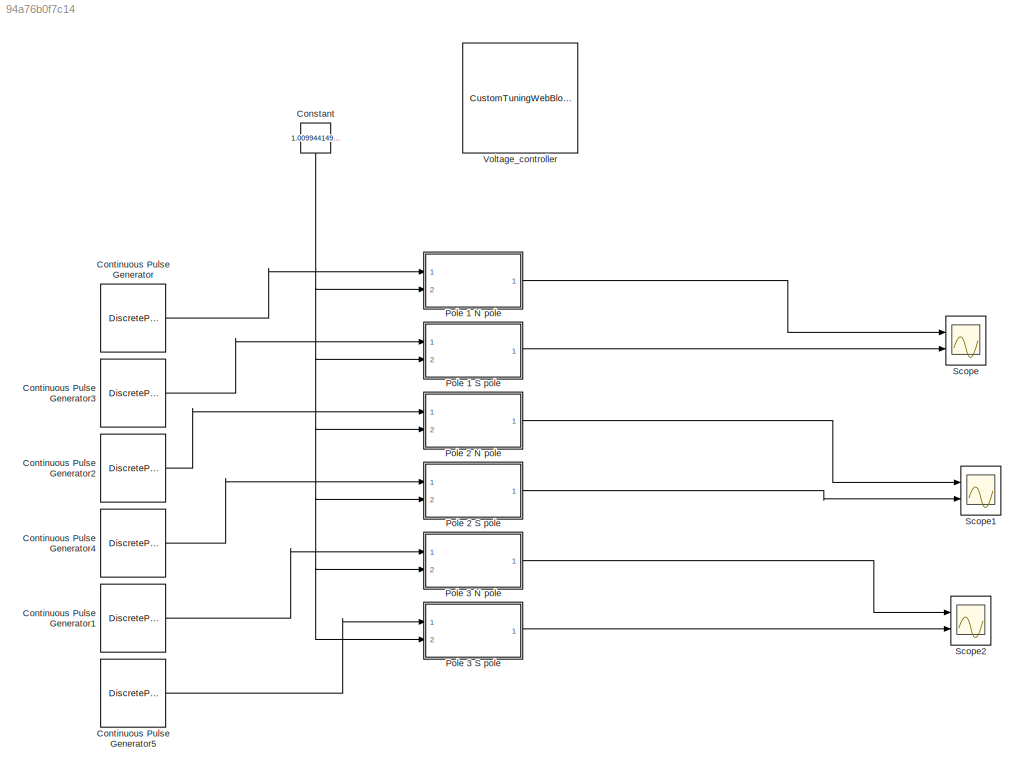
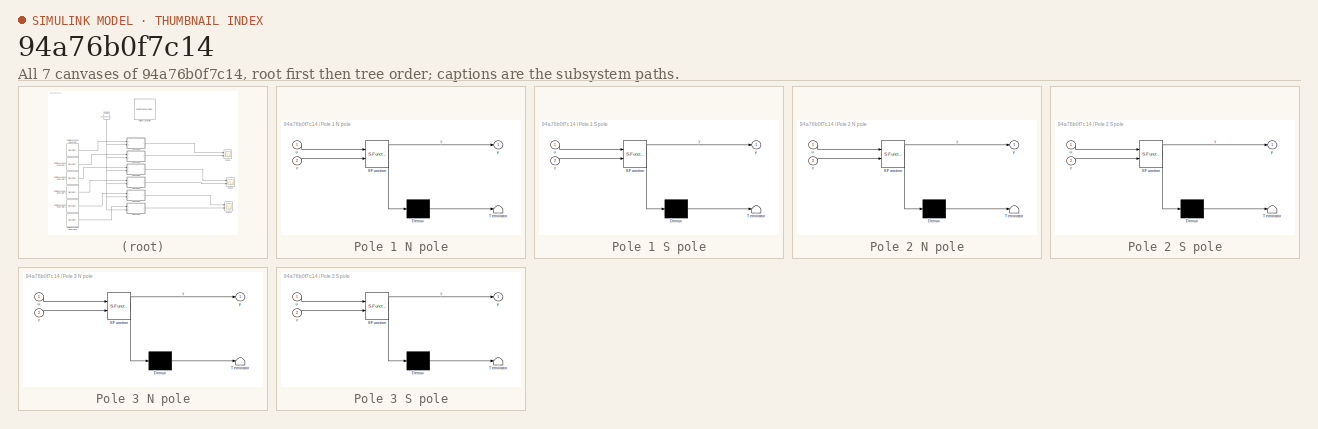
[diagram: thumbnail index - all 7 canvases of the model, root first then tree order]
MODEL slx_94a76b0f7c14
KIND model
CONFIG AbsTol = auto
CONFIG EnableMultiTasking = off
CONFIG FixedStep = auto
CONFIG MaxStep = auto
CONFIG MinStep = auto
CONFIG RelTol = 1e-3
CONFIG SampleTimeConstraint = Unconstrained
CONFIG SolverName = VariableStepAuto
CONFIG StartTime = 0.0
CONFIG StopTime = 10.0
BLOCK [Constant] Constant
  NameLocation = left
  Value = 1.009944149718375
BLOCK [DiscretePulseGenerator] Continuous Pulse Generator
  Period = 3
  Ports = [0, 1]
  PulseType = Time based
  PulseWidth = 100/3
BLOCK [DiscretePulseGenerator] Continuous Pulse Generator1
  Period = 3
  PhaseDelay = 2
  Ports = [0, 1]
  PulseType = Time based
  PulseWidth = 100/3
BLOCK [DiscretePulseGenerator] Continuous Pulse Generator2
  Period = 3
  PhaseDelay = 1
  Ports = [0, 1]
  PulseType = Time based
  PulseWidth = 100/3
BLOCK [DiscretePulseGenerator] Continuous Pulse Generator3
  Amplitude = -1
  Period = 3
  Ports = [0, 1]
  PulseType = Time based
  PulseWidth = 100/3
BLOCK [DiscretePulseGenerator] Continuous Pulse Generator4
  Amplitude = -1
  Period = 3
  PhaseDelay = 1
  Ports = [0, 1]
  PulseType = Time based
  PulseWidth = 100/3
BLOCK [DiscretePulseGenerator] Continuous Pulse Generator5
  Amplitude = -1
  Period = 3
  PhaseDelay = 2
  Ports = [0, 1]
  PulseType = Time based
  PulseWidth = 100/3
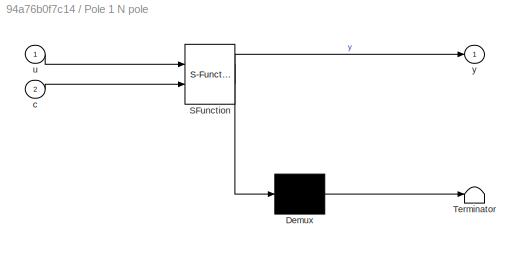
BLOCK [SubSystem] Pole 1 N pole
  ErrorFcn = Stateflow.Translate.translate
  PermitHierarchicalResolution = ExplicitOnly
  Ports = [2, 1]
  RequestExecContextInheritance = off
  SFBlockType = MATLAB Function
  TreatAsAtomicUnit = on
BLOCK [Demux] Pole 1 N pole/ Demux 
  Outputs = 1
  Ports = [1, 1]
BLOCK [S-Function] Pole 1 N pole/ SFunction 
  EnableBusSupport = on
  FunctionName = sf_sfun
  PortCounts = [2 2]
  Ports = [2, 2]
  SFcnIsStateOwnerBlock = off
  SFunctionDeploymentMode = off
  Tag = Stateflow S-Function 2
BLOCK [Terminator] Pole 1 N pole/ Terminator 
BLOCK [Inport] Pole 1 N pole/c
  Port = 2
BLOCK [Inport] Pole 1 N pole/u
BLOCK [Outport] Pole 1 N pole/y
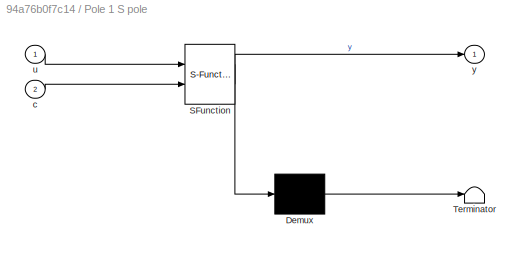
BLOCK [SubSystem] Pole 1 S pole
  ErrorFcn = Stateflow.Translate.translate
  PermitHierarchicalResolution = ExplicitOnly
  Ports = [2, 1]
  RequestExecContextInheritance = off
  SFBlockType = MATLAB Function
  TreatAsAtomicUnit = on
BLOCK [Demux] Pole 1 S pole/ Demux 
  Outputs = 1
  Ports = [1, 1]
BLOCK [S-Function] Pole 1 S pole/ SFunction 
  EnableBusSupport = on
  FunctionName = sf_sfun
  PortCounts = [2 2]
  Ports = [2, 2]
  SFcnIsStateOwnerBlock = off
  SFunctionDeploymentMode = off
  Tag = Stateflow S-Function 1
BLOCK [Terminator] Pole 1 S pole/ Terminator 
BLOCK [Inport] Pole 1 S pole/c
  Port = 2
BLOCK [Inport] Pole 1 S pole/u
BLOCK [Outport] Pole 1 S pole/y
BLOCK [SubSystem] Pole 2 N pole
  ErrorFcn = Stateflow.Translate.translate
  PermitHierarchicalResolution = ExplicitOnly
  Ports = [2, 1]
  RequestExecContextInheritance = off
  SFBlockType = MATLAB Function
  TreatAsAtomicUnit = on
BLOCK [Demux] Pole 2 N pole/ Demux 
  Outputs = 1
  Ports = [1, 1]
BLOCK [S-Function] Pole 2 N pole/ SFunction 
  EnableBusSupport = on
  FunctionName = sf_sfun
  PortCounts = [2 2]
  Ports = [2, 2]
  SFcnIsStateOwnerBlock = off
  SFunctionDeploymentMode = off
  Tag = Stateflow S-Function 3
BLOCK [Terminator] Pole 2 N pole/ Terminator 
BLOCK [Inport] Pole 2 N pole/c
  Port = 2
BLOCK [Inport] Pole 2 N pole/u
BLOCK [Outport] Pole 2 N pole/y
BLOCK [SubSystem] Pole 2 S pole
  ErrorFcn = Stateflow.Translate.translate
  PermitHierarchicalResolution = ExplicitOnly
  Ports = [2, 1]
  RequestExecContextInheritance = off
  SFBlockType = MATLAB Function
  TreatAsAtomicUnit = on
BLOCK [Demux] Pole 2 S pole/ Demux 
  Outputs = 1
  Ports = [1, 1]
BLOCK [S-Function] Pole 2 S pole/ SFunction 
  EnableBusSupport = on
  FunctionName = sf_sfun
  PortCounts = [2 2]
  Ports = [2, 2]
  SFcnIsStateOwnerBlock = off
  SFunctionDeploymentMode = off
  Tag = Stateflow S-Function 7
BLOCK [Terminator] Pole 2 S pole/ Terminator 
BLOCK [Inport] Pole 2 S pole/c
  Port = 2
BLOCK [Inport] Pole 2 S pole/u
BLOCK [Outport] Pole 2 S pole/y
BLOCK [SubSystem] Pole 3 N pole
  ErrorFcn = Stateflow.Translate.translate
  PermitHierarchicalResolution = ExplicitOnly
  Ports = [2, 1]
  RequestExecContextInheritance = off
  SFBlockType = MATLAB Function
  TreatAsAtomicUnit = on
BLOCK [Demux] Pole 3 N pole/ Demux 
  Outputs = 1
  Ports = [1, 1]
BLOCK [S-Function] Pole 3 N pole/ SFunction 
  EnableBusSupport = on
  FunctionName = sf_sfun
  PortCounts = [2 2]
  Ports = [2, 2]
  SFcnIsStateOwnerBlock = off
  SFunctionDeploymentMode = off
  Tag = Stateflow S-Function 4
BLOCK [Terminator] Pole 3 N pole/ Terminator 
BLOCK [Inport] Pole 3 N pole/c
  Port = 2
BLOCK [Inport] Pole 3 N pole/u
BLOCK [Outport] Pole 3 N pole/y
BLOCK [SubSystem] Pole 3 S pole
  ErrorFcn = Stateflow.Translate.translate
  PermitHierarchicalResolution = ExplicitOnly
  Ports = [2, 1]
  RequestExecContextInheritance = off
  SFBlockType = MATLAB Function
  TreatAsAtomicUnit = on
BLOCK [Demux] Pole 3 S pole/ Demux 
  Outputs = 1
  Ports = [1, 1]
BLOCK [S-Function] Pole 3 S pole/ SFunction 
  EnableBusSupport = on
  FunctionName = sf_sfun
  PortCounts = [2 2]
  Ports = [2, 2]
  SFcnIsStateOwnerBlock = off
  SFunctionDeploymentMode = off
  Tag = Stateflow S-Function 5
BLOCK [Terminator] Pole 3 S pole/ Terminator 
BLOCK [Inport] Pole 3 S pole/c
  Port = 2
BLOCK [Inport] Pole 3 S pole/u
BLOCK [Outport] Pole 3 S pole/y
BLOCK [Scope] Scope
  Floating = off
  NumInputPorts = 2
  Ports = [2]
  ScopeSpecificationString = Simulink.scopes.TimeScopeBlockCfg('CurrentConfiguration', extmgr.ConfigurationSet(extmgr.Configuration('Core','General UI',true),extmgr.Configuration('Core','Source UI',true),extmgr.Configuration('Sources','WiredSimulink',true),extmgr.Configuration('Visuals','Time Domain',true,'SerializedDisplays',{struct('MinYLimReal','-1.26243','MaxYLimReal','1.26243','YLabelReal','','MinYLimMag','0.00000','MaxY...<+1382ch>
BLOCK [Scope] Scope1
  Floating = off
  NumInputPorts = 2
  Ports = [2]
  ScopeSpecificationString = Simulink.scopes.TimeScopeBlockCfg('CurrentConfiguration', extmgr.ConfigurationSet(extmgr.Configuration('Core','General UI',true),extmgr.Configuration('Core','Source UI',true),extmgr.Configuration('Sources','WiredSimulink',true,'DataLoggingVariableName','ScopeData1'),extmgr.Configuration('Visuals','Time Domain',true,'SerializedDisplays',{struct('MinYLimReal','-1.26243','MaxYLimReal','1.26243','YLab...<+1386ch>
BLOCK [Scope] Scope2
  Floating = off
  NumInputPorts = 2
  Ports = [2]
  ScopeSpecificationString = Simulink.scopes.TimeScopeBlockCfg('CurrentConfiguration', extmgr.ConfigurationSet(extmgr.Configuration('Core','General UI',true),extmgr.Configuration('Core','Source UI',true),extmgr.Configuration('Sources','WiredSimulink',true,'DataLoggingVariableName','ScopeData2'),extmgr.Configuration('Visuals','Time Domain',true,'SerializedDisplays',{struct('MinYLimReal','-1.26243','MaxYLimReal','1.26243','YLab...<+1386ch>
BLOCK [CustomTuningWebBlock] Voltage_controller
  Configuration = {"components":[{"name":"CircularScaleComponent","settings":{"bounds":{"max":2,"min":0,"tickInterval":"auto"},"direction":"cw","flipLimits":0,"innerRadius":0.6636618227670849,"internalTickHeightScaleFactor":1,"labelColor":[255,255,200],"labelFont":{"font":"Arial","fontSize":12},"labelTransparency":1,"minorTickHeightScaleFactor":0.2,"needleImage":{"size":[150,150],"src":"data:image\/svg+xml;base64,P...<+43649ch>
  LabelPosition = Hide
  ShowInitialText = on
NET Constant:1 -> Pole 1 N pole:2, Pole 1 S pole:2, Pole 2 N pole:2, Pole 2 S pole:2, Pole 3 N pole:2, Pole 3 S pole:2
LINE Continuous Pulse Generator1:1 -> Pole 3 N pole:1
LINE Continuous Pulse Generator2:1 -> Pole 2 N pole:1
LINE Continuous Pulse Generator3:1 -> Pole 1 S pole:1
LINE Continuous Pulse Generator4:1 -> Pole 2 S pole:1
LINE Continuous Pulse Generator5:1 -> Pole 3 S pole:1
LINE Continuous Pulse Generator:1 -> Pole 1 N pole:1
LINE Pole 1 N pole:1 -> Scope:1
LINE Pole 1 S pole:1 -> Scope:2
LINE Pole 2 N pole:1 -> Scope1:1
LINE Pole 2 S pole:1 -> Scope1:2
LINE Pole 3 N pole:1 -> Scope2:1
LINE Pole 3 S pole:1 -> Scope2:2
note: NET lines group one-source signal fan-out (src -> all destinations, sorted); 1:1 wires keep LINE
CHART Pole 1 N pole states=1 transitions=1
  STATE_LABEL 'eML_blk_kernel()'
  STATE_LABEL 'SCRIPT:\nfunction y = voltage_control(u,c)\n\ny = u*c;\n\nend\n'
CHART Pole 2 N pole states=1 transitions=1
  STATE_LABEL 'eML_blk_kernel()'
  STATE_LABEL 'SCRIPT:\nfunction y = voltage_control(u,c)\n\ny = u*c;\n\nend\n'
CHART Pole 3 N pole states=1 transitions=1
  STATE_LABEL 'eML_blk_kernel()'
  STATE_LABEL 'SCRIPT:\nfunction y = voltage_control(u,c)\n\ny = u*c;\n\nend\n'
CHART Pole 3 S pole states=1 transitions=1
  STATE_LABEL 'eML_blk_kernel()'
  STATE_LABEL 'SCRIPT:\nfunction y = voltage_control(u,c)\n\ny = u*c;\n\nend\n'
CHART Pole 2 S pole states=1 transitions=1
  STATE_LABEL 'eML_blk_kernel()'
  STATE_LABEL 'SCRIPT:\nfunction y = voltage_control(u,c)\n\ny = u*c;\n\nend\n'
CHART Pole 1 S pole states=1 transitions=1
  STATE_LABEL 'eML_blk_kernel()'
  STATE_LABEL 'SCRIPT:\nfunction y = voltage_control(u,c)\n\ny = u*c;\n\nend\n'
CHART  states=0 transitions=0
CHART  states=0 transitions=0
CHART  states=0 transitions=0
CHART  states=0 transitions=0
CHART  states=0 transitions=0
CHART  states=0 transitions=0
